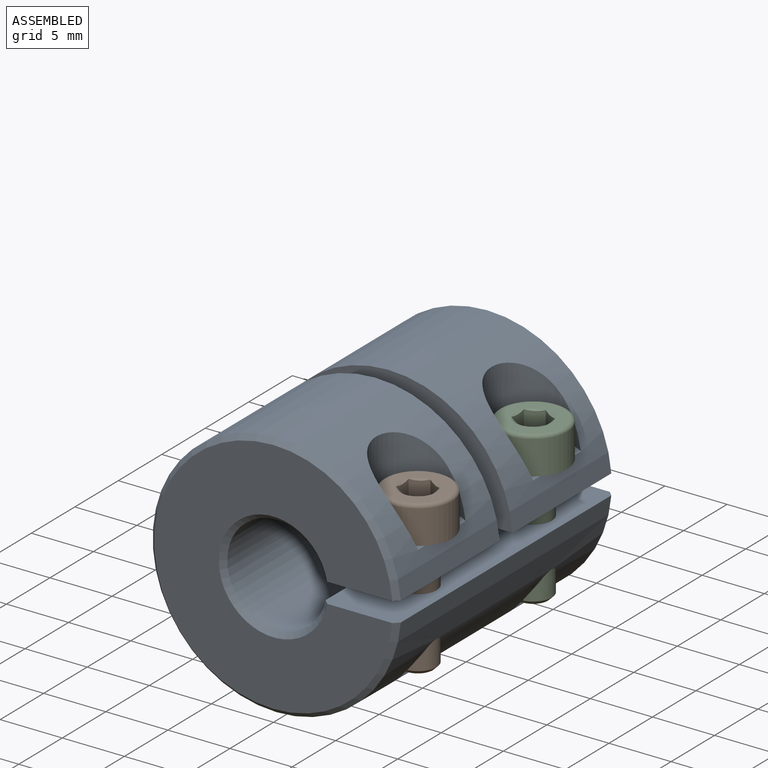
[diagram: assembled view]
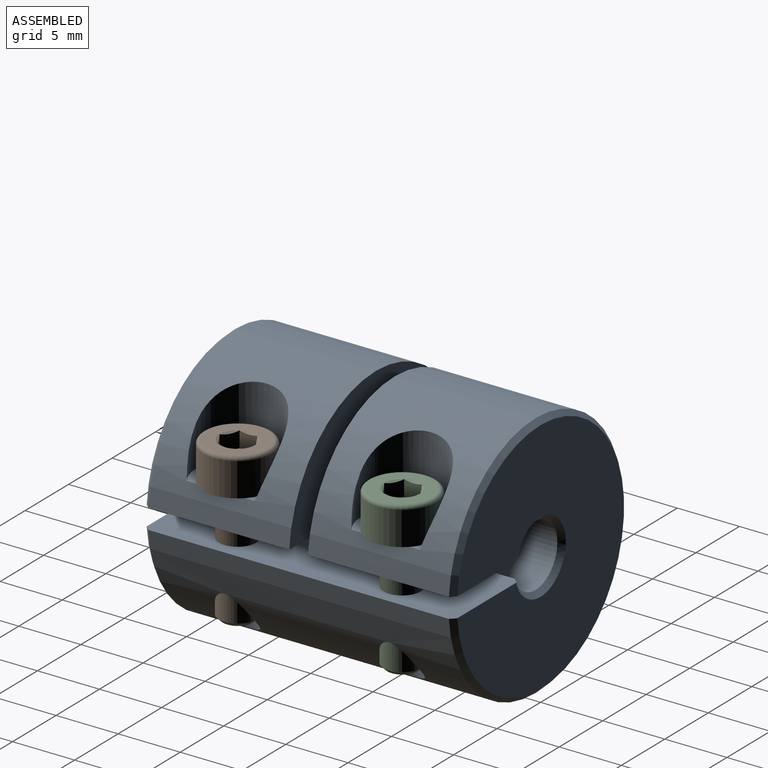
[diagram: assembled view, second angle]
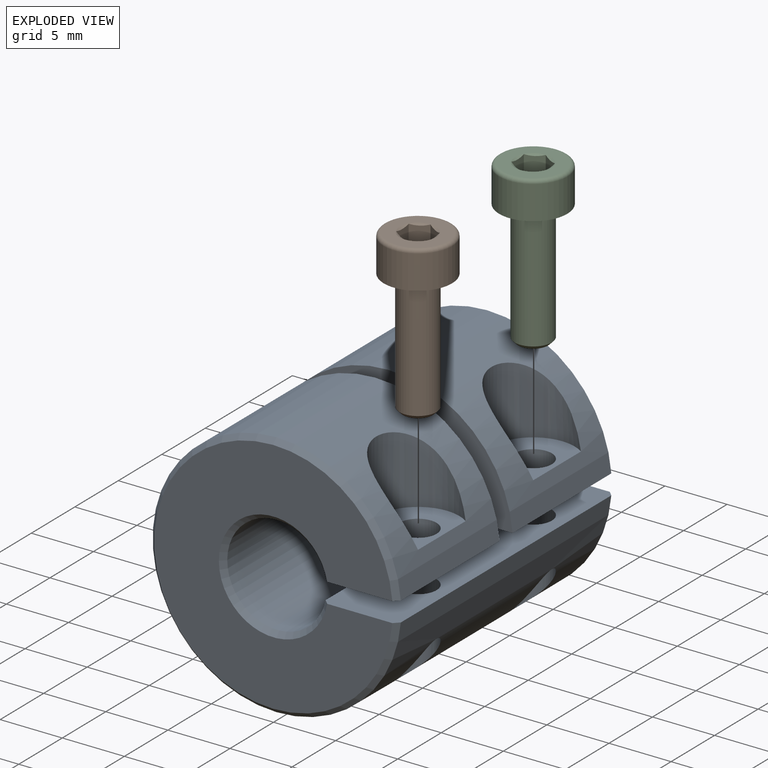
[diagram: exploded view]
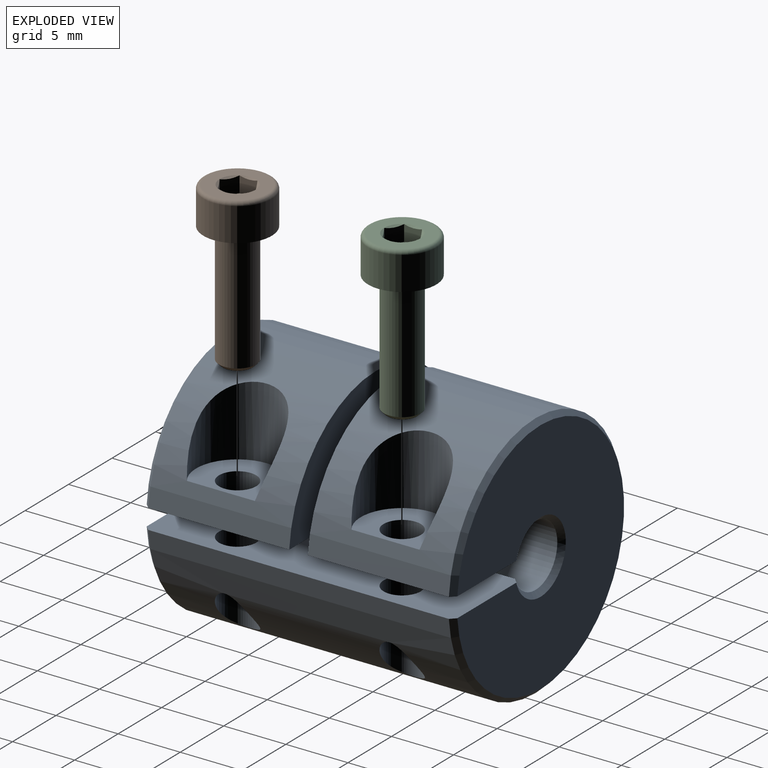
[diagram: exploded view, second angle]
ASSEMBLY  parts=3 mates=2
PART A: 24 faces, bbox 20x25x20 mm
  f0: cone r=9.6mm half-angle=45deg, axis (0,1,0), area 33.9mm2, adj f10,f11,f12,f14
  f1: cone r=2.9mm half-angle=45deg, axis (0,1,0), area 8.7mm2, adj f6,f12,f13,f15
  f2: cylinder r=3.35mm len=6.7mm, axis (0,0,-1), area 59.8mm2, adj f10,f21
  f3: cylinder r=3.35mm len=6.7mm, axis (0,0,-1), area 59.8mm2, adj f10,f20
  f4: cylinder r=1.5mm len=5.8mm, axis (0,0,1), area 48.3mm2, adj f10,f12
  f5: cylinder r=1.5mm len=5.8mm, axis (0,0,1), area 48.3mm2, adj f10,f12
  f6: cylinder r=2.5mm len=6.6mm, axis (0,1,0), area 92.9mm2, adj f1,f12,f13,f16
  f7: cylinder r=4mm len=17.6mm, axis (0,1,0), area 395.1mm2, adj f11,f12,f13,f16,f17,f18,f19,f23
  f8: cylinder r=1.5mm len=3mm, axis (0,0,1), area 23.6mm2, adj f11,f20
  f9: cylinder r=1.5mm len=3mm, axis (0,0,1), area 23.6mm2, adj f13,f21
  f10: cylinder r=10mm len=24.2mm, axis (0,1,0), area 1320.3mm2, adj f0,f2,f3,f4,f5,f11,f12,f13
  f11: plane 11.75x6.05mm, normal (0,0,-1), area 63.8mm2, adj f0,f7,f8,f10,f14,f18,f23
  f12: plane 25.01x7.61mm, normal (0,0,1), area 147.6mm2, adj f0,f1,f4,f5,f6,f7,f10,f14
  f13: plane 11.76x7.61mm, normal (0,0,-1), area 74.7mm2, adj f1,f6,f7,f9,f10,f15,f16,f19
  f14: plane 19.2x19.17mm, normal (0,-1,0), area 220.4mm2, adj f0,f11,f12,f23
  f15: plane 19.2x19.17mm, normal (0,1,0), area 252.3mm2, adj f1,f12,f13,f22
  f16: plane 8x7.92mm, normal (0,-1,0), area 28.2mm2, adj f6,f7,f12,f13
  f17: plane 6.05x1.5mm, normal (0,0,1), area 9.1mm2, adj f7,f10,f18,f19
  f18: plane 19.97x10.8mm, normal (0,1,0), area 131.9mm2, adj f7,f10,f11,f17
  f19: plane 19.97x10.8mm, normal (0,-1,0), area 131.9mm2, adj f7,f10,f13,f17
  f20: plane 6.7x5.28mm, normal (0,0,1), area 22.7mm2, adj f3,f8,f10
  f21: plane 6.7x5.28mm, normal (0,0,1), area 22.7mm2, adj f2,f9,f10
  f22: cone r=10mm half-angle=45deg, axis (0,-1,0), area 33.9mm2, adj f10,f12,f13,f15
  f23: cone r=4mm half-angle=45deg, axis (0,-1,0), area 14mm2, adj f7,f11,f12,f14
PART B: 24 faces, bbox 13x6x6 mm
  f0: plane 1.08x0.63mm, normal (-1,0,0), area 0.1mm2, adj f16,f17,f23
  f1: plane 1.25x0.36mm, normal (-1,0,0), area 0.1mm2, adj f17,f18,f23
  f2: plane 1.08x0.63mm, normal (-1,0,0), area 0.1mm2, adj f18,f19,f23
  f3: plane 1.08x0.63mm, normal (-1,0,0), area 0.1mm2, adj f19,f20,f23
  f4: plane 1.25x0.36mm, normal (-1,0,0), area 0.1mm2, adj f20,f21,f23
  f5: cone r=1.45mm half-angle=60deg, axis (-1,0,0), area 1.4mm2, adj f15,f16,f17,f18,f19,f20,f21
  f6: cone r=1.51mm half-angle=26deg, axis (-1,0,0), area 4.6mm2, adj f7,f11
  f7: torus R=1.6mm, axis (1,0,0), area 0.4mm2, adj f6,f10
  f8: plane 2.39x2.39mm, normal (1,0,0), area 4.5mm2, adj f9
  f9: cone r=1.5mm half-angle=45deg, axis (-1,0,0), area 3.7mm2, adj f8,f10
  f10: cylinder r=1.5mm len=9.18mm, axis (1,0,0), area 86.6mm2, adj f7,f9
  f11: torus R=1.8mm, axis (1,0,0), area 1.2mm2, adj f6,f13
  f12: cylinder r=2.75mm len=5.5mm, axis (1,0,0), area 46.7mm2, adj f13,f14
  f13: plane 5.5x5.5mm, normal (1,0,0), area 13.6mm2, adj f11,f12
  f14: torus R=2.45mm, axis (1,0,0), area 7.8mm2, adj f12,f15
  f15: plane 4.9x4.9mm, normal (-1,0,0), area 12.2mm2, adj f5,f14
  f16: plane 1.45x1.3mm, normal (0,0,-1), area 1.8mm2, adj f0,f5,f17,f21,f22
  f17: plane 1.29x1.25mm, normal (0,0.87,-0.5), area 1.8mm2, adj f0,f1,f5,f16,f18
  f18: plane 1.29x1.25mm, normal (0,0.87,0.5), area 1.8mm2, adj f1,f2,f5,f17,f19
  f19: plane 1.45x1.3mm, normal (0,0,1), area 1.8mm2, adj f2,f3,f5,f18,f20
  f20: plane 1.29x1.25mm, normal (0,-0.87,0.5), area 1.8mm2, adj f3,f4,f5,f19,f21
  f21: plane 1.29x1.25mm, normal (0,-0.87,-0.5), area 1.8mm2, adj f4,f5,f16,f20,f22
  f22: plane 1.08x0.63mm, normal (-1,0,0), area 0.1mm2, adj f16,f21,f23
  f23: cone r=1.25mm half-angle=60deg, axis (-1,0,0), area 5.7mm2, adj f0,f1,f2,f3,f4,f22
PART C: same geometry as B
PLACE A at identity fixed
PLACE B rot(axis=(0.71,0,-0.71),180deg) t=(7.51,-19.13,3.3)mm
PLACE C rot(axis=(0.71,0,-0.71),180deg) t=(7.51,-5.88,3.3)mm
MATE fastened B.f5 <-> A.f3  axis (0,0,-1) through (7.51,-19.13,3.3)mm
MATE fastened C.f5 <-> A.f2  axis (0,0,-1) through (7.51,-5.88,3.3)mm
